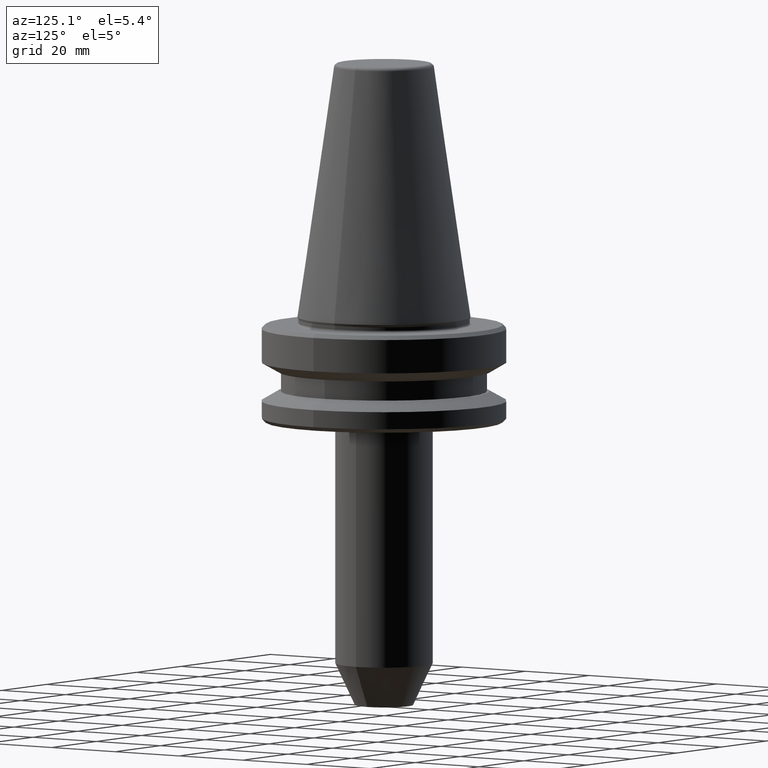
[diagram: clean part render]
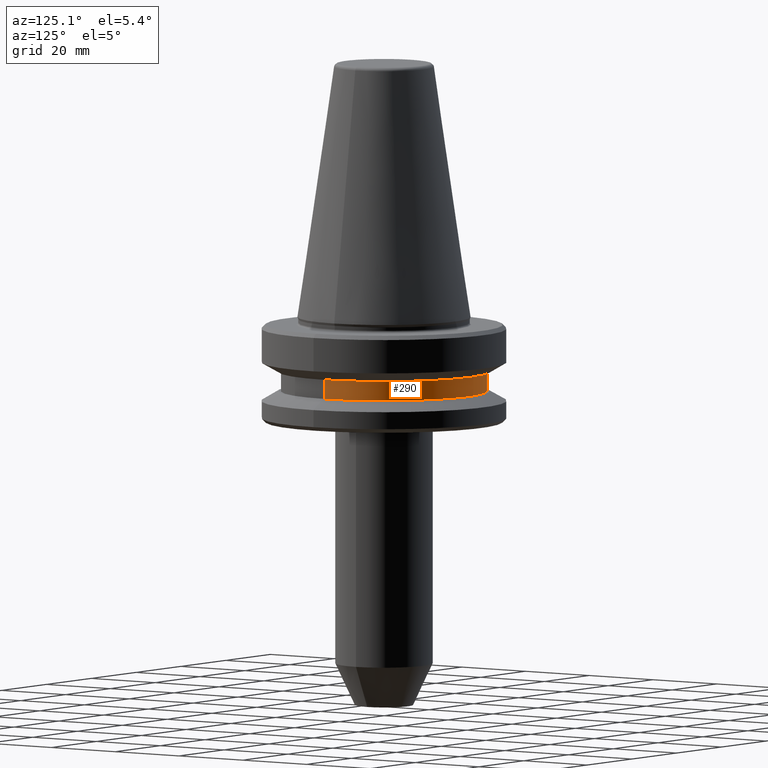
[diagram: same view with one face highlighted and labeled with its STEP entity id]
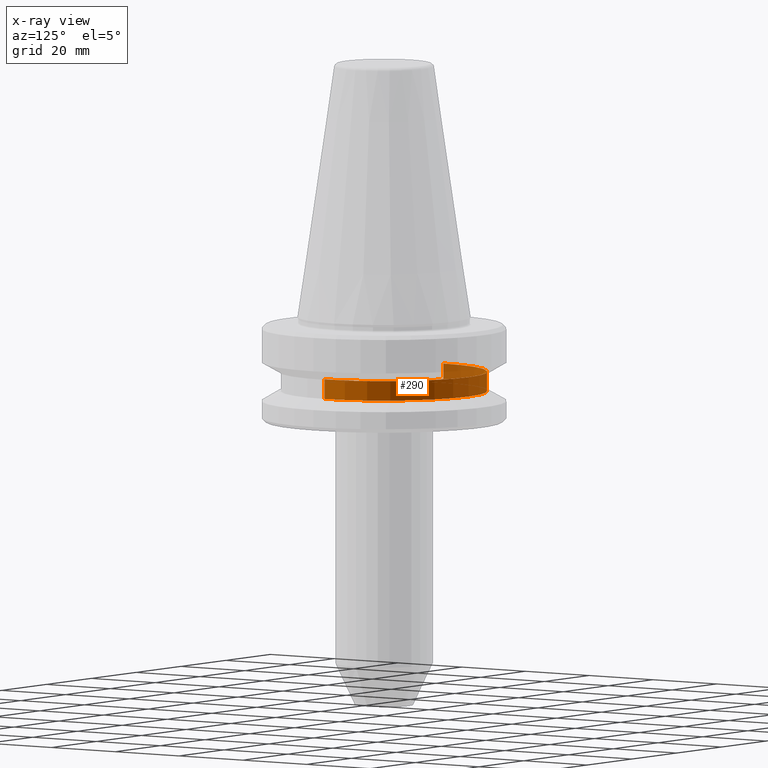
[diagram: x-ray of the same camera — body ghosted, the highlighted face saturated]
A machine part, auxiliary view. The second image highlights one B-rep face of the part: STEP entity #290.
The next image is the same camera in x-ray: the body ghosted, the highlighted face saturated — about 13% of this face is hidden behind the body in this view.
In plain terms, the highlighted cylindrical surface (partial cylindrical patch) has radius 26.5 mm, axis along (-0, -0, 1).
Its self-contained STEP definition (entity closure, byte-faithful):
#17 = DIRECTION ( 'NONE',  ( -0.0000000000000000000, -0.0000000000000000000, 1.000000000000000000 ) ) ;
#36 = ORIENTED_EDGE ( 'NONE', *, *, #361, .F. ) ;
#55 = VERTEX_POINT ( 'NONE', #646 ) ;
#79 = EDGE_CURVE ( 'NONE', #579, #327, #408, .T. ) ;
#133 = CIRCLE ( 'NONE', #286, 26.49999999999996800 ) ;
#158 = ORIENTED_EDGE ( 'NONE', *, *, #79, .F. ) ;
#177 = AXIS2_PLACEMENT_3D ( 'NONE', #606, #946, #968 ) ;
#186 = LINE ( 'NONE', #412, #321 ) ;
#253 = DIRECTION ( 'NONE',  ( 1.000000000000000000, 0.0000000000000000000, 0.0000000000000000000 ) ) ;
#286 = AXIS2_PLACEMENT_3D ( 'NONE', #605, #451, #325 ) ;
#290 = ADVANCED_FACE ( 'NONE', ( #721 ), #493, .T. ) ;
#321 = VECTOR ( 'NONE', #17, 1000.000000000000000 ) ;
#325 = DIRECTION ( 'NONE',  ( 1.000000000000000000, 0.0000000000000000000, 0.0000000000000000000 ) ) ;
#327 = VERTEX_POINT ( 'NONE', #405 ) ;
#361 = EDGE_CURVE ( 'NONE', #998, #579, #820, .T. ) ;
#405 = CARTESIAN_POINT ( 'NONE',  ( -26.49999999999996800, 3.245314017740481800E-015, -14.10000000000050100 ) ) ;
#408 = CIRCLE ( 'NONE', #959, 26.49999999999996800 ) ;
#412 = CARTESIAN_POINT ( 'NONE',  ( -26.49999999999996800, 3.245314017740481800E-015, 94.60731411746931500 ) ) ;
#422 = ORIENTED_EDGE ( 'NONE', *, *, #489, .T. ) ;
#435 = ORIENTED_EDGE ( 'NONE', *, *, #499, .T. ) ;
#451 = DIRECTION ( 'NONE',  ( -0.0000000000000000000, -0.0000000000000000000, 1.000000000000000000 ) ) ;
#489 = EDGE_CURVE ( 'NONE', #55, #327, #186, .T. ) ;
#493 = CYLINDRICAL_SURFACE ( 'NONE', #177, 26.49999999999996800 ) ;
#499 = EDGE_CURVE ( 'NONE', #998, #55, #133, .T. ) ;
#535 = DIRECTION ( 'NONE',  ( -0.0000000000000000000, -0.0000000000000000000, 1.000000000000000000 ) ) ;
#579 = VERTEX_POINT ( 'NONE', #954 ) ;
#594 = CARTESIAN_POINT ( 'NONE',  ( 26.49999999999996800, 0.0000000000000000000, -19.10000000000095000 ) ) ;
#605 = CARTESIAN_POINT ( 'NONE',  ( 0.0000000000000000000, 0.0000000000000000000, -19.10000000000095000 ) ) ;
#606 = CARTESIAN_POINT ( 'NONE',  ( 0.0000000000000000000, 0.0000000000000000000, 94.60731411746931500 ) ) ;
#646 = CARTESIAN_POINT ( 'NONE',  ( -26.49999999999996800, 3.245314017740481800E-015, -19.10000000000095000 ) ) ;
#721 = FACE_OUTER_BOUND ( 'NONE', #957, .T. ) ;
#810 = VECTOR ( 'NONE', #535, 1000.000000000000000 ) ;
#820 = LINE ( 'NONE', #927, #810 ) ;
#832 = CARTESIAN_POINT ( 'NONE',  ( 0.0000000000000000000, 0.0000000000000000000, -14.10000000000050100 ) ) ;
#841 = DIRECTION ( 'NONE',  ( -0.0000000000000000000, -0.0000000000000000000, 1.000000000000000000 ) ) ;
#927 = CARTESIAN_POINT ( 'NONE',  ( 26.49999999999996800, 0.0000000000000000000, 94.60731411746931500 ) ) ;
#946 = DIRECTION ( 'NONE',  ( -0.0000000000000000000, -0.0000000000000000000, 1.000000000000000000 ) ) ;
#954 = CARTESIAN_POINT ( 'NONE',  ( 26.49999999999996800, 0.0000000000000000000, -14.10000000000050100 ) ) ;
#957 = EDGE_LOOP ( 'NONE', ( #435, #422, #158, #36 ) ) ;
#959 = AXIS2_PLACEMENT_3D ( 'NONE', #832, #841, #253 ) ;
#968 = DIRECTION ( 'NONE',  ( 1.000000000000000000, 0.0000000000000000000, 0.0000000000000000000 ) ) ;
#998 = VERTEX_POINT ( 'NONE', #594 ) ;